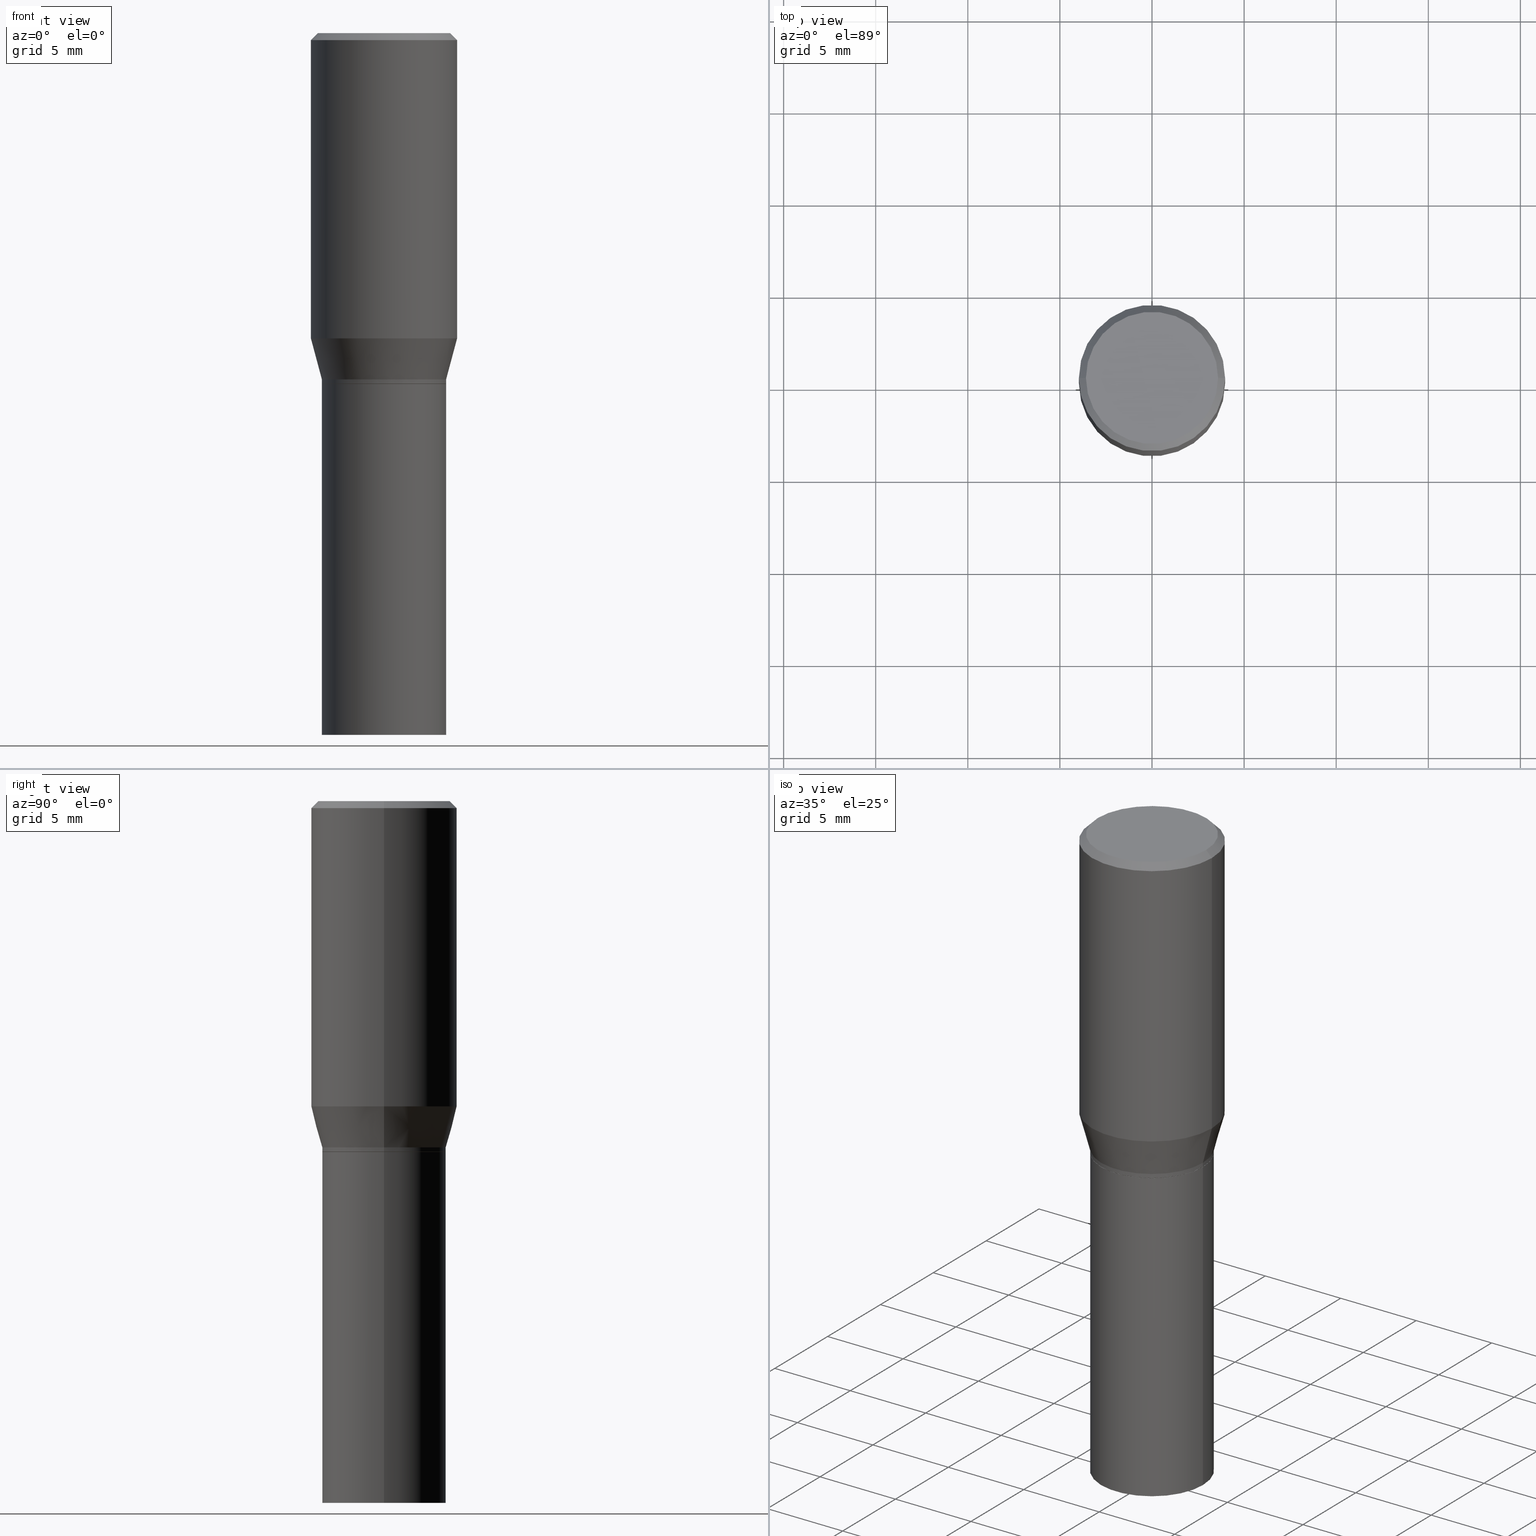
[diagram: canonical four-view strip — front | top / right | iso, engineering-drawing reading convention]
A machine part, canonical four-view strip (front | top / right | iso — engineering-drawing reading convention). The complete STEP part file that produces these views, byte-faithful:
ISO-10303-21;
HEADER;
FILE_DESCRIPTION (( 'STEP AP203' ),
    '1' );
FILE_NAME ('39333.STEP',
    '2024-03-12T18:59:09',
    ( '' ),
    ( '' ),
    'SwSTEP 2.0',
    'SolidWorks 2023',
    '' );
FILE_SCHEMA (( 'CONFIG_CONTROL_DESIGN' ));
ENDSEC;

DATA;
#1 = DIRECTION ( 'NONE',  ( 1.000000000000000000, -6.982962677686265922E-15, 4.874209154772796007E-29 ) ) ;
#2 = AXIS2_PLACEMENT_3D ( 'NONE', #280, #392, #69 ) ;
#3 = DIRECTION ( 'NONE',  ( -2.438088387897960049E-29, 3.491481338843145188E-15, 1.000000000000000000 ) ) ;
#4 = LINE ( 'NONE', #144, #257 ) ;
#5 =( NAMED_UNIT ( * ) SI_UNIT ( $, .STERADIAN. ) SOLID_ANGLE_UNIT ( ) );
#6 = FACE_OUTER_BOUND ( 'NONE', #228, .T. ) ;
#7 = PERSON_AND_ORGANIZATION ( #335, #107 ) ;
#8 = LINE ( 'NONE', #187, #110 ) ;
#9 = CONICAL_SURFACE ( 'NONE', #119, 0.1323000000000000009, 0.7853981633974653764 ) ;
#10 = MECHANICAL_CONTEXT ( 'NONE', #27, 'mechanical' ) ;
#11 = CC_DESIGN_PERSON_AND_ORGANIZATION_ASSIGNMENT ( #50, #80, ( #263 ) ) ;
#12 = CARTESIAN_POINT ( 'NONE',  ( -0.1323000000000000009, -1.675913737547635335E-15, -0.7500000000000001110 ) ) ;
#13 = EDGE_CURVE ( 'NONE', #385, #230, #47, .T. ) ;
#14 = CALENDAR_DATE ( 2024, 12, 3 ) ;
#15 = DATE_TIME_ROLE ( 'creation_date' ) ;
#16 = DIRECTION ( 'NONE',  ( 1.000000000000000000, -6.982962677686265133E-15, 0.000000000000000000 ) ) ;
#17 = EDGE_CURVE ( 'NONE', #260, #193, #23, .T. ) ;
#18 = CC_DESIGN_APPROVAL ( #441, ( #371 ) ) ;
#19 = DATE_AND_TIME ( #14, #362 ) ;
#20 = ORIENTED_EDGE ( 'NONE', *, *, #302, .F. ) ;
#21 = PRODUCT_DEFINITION_SHAPE ( 'NONE', 'NONE',  #154 ) ;
#22 = ORIENTED_EDGE ( 'NONE', *, *, #25, .T. ) ;
#23 = CIRCLE ( 'NONE', #277, 0.1323000000000000009 ) ;
#24 = AXIS2_PLACEMENT_3D ( 'NONE', #143, #388, #175 ) ;
#25 = EDGE_CURVE ( 'NONE', #193, #260, #346, .T. ) ;
#26 = ORIENTED_EDGE ( 'NONE', *, *, #66, .T. ) ;
#27 = APPLICATION_CONTEXT ( 'configuration controlled 3d designs of mechanical parts and assemblies' ) ;
#28 = EDGE_LOOP ( 'NONE', ( #74, #161, #201, #53 ) ) ;
#29 = ORIENTED_EDGE ( 'NONE', *, *, #176, .T. ) ;
#30 = DIRECTION ( 'NONE',  ( -2.445468806185136597E-29, 3.491481338843145583E-15, 1.000000000000000000 ) ) ;
#31 = CARTESIAN_POINT ( 'NONE',  ( 9.273374435967543661E-16, 0.1327999999999973924, -0.7500000000000004441 ) ) ;
#32 = CARTESIAN_POINT ( 'NONE',  ( 0.000000000000000000, 0.000000000000000000, 0.000000000000000000 ) ) ;
#33 = AXIS2_PLACEMENT_3D ( 'NONE', #37, #98, #100 ) ;
#34 = CARTESIAN_POINT ( 'NONE',  ( 0.000000000000000000, 0.000000000000000000, 0.000000000000000000 ) ) ;
#35 = ORIENTED_EDGE ( 'NONE', *, *, #383, .T. ) ;
#36 = CARTESIAN_POINT ( 'NONE',  ( 0.1562500000000000000, -1.091087918388479174E-15, 7.619026212181150377E-30 ) ) ;
#37 = CARTESIAN_POINT ( 'NONE',  ( 3.668203209277705088E-31, -5.237222008264718399E-17, -0.01499999999999999944 ) ) ;
#38 = FACE_OUTER_BOUND ( 'NONE', #188, .T. ) ;
#39 = PLANE ( 'NONE',  #205 ) ;
#40 = CARTESIAN_POINT ( 'NONE',  ( 1.595627822192971094E-29, -2.278133644900773069E-15, -0.6524834085625104141 ) ) ;
#41 = DIRECTION ( 'NONE',  ( -2.445468806185136597E-29, 3.491481338843145583E-15, 1.000000000000000000 ) ) ;
#42 = APPROVAL_DATE_TIME ( #214, #253 ) ;
#43 = CARTESIAN_POINT ( 'NONE',  ( -0.1328000000000000569, 9.436007530894134510E-16, -6.532345799858516735E-30 ) ) ;
#44 = DIRECTION ( 'NONE',  ( -2.445468806185136877E-29, 3.491481338843145188E-15, 1.000000000000000000 ) ) ;
#45 = FACE_OUTER_BOUND ( 'NONE', #306, .T. ) ;
#46 = EDGE_LOOP ( 'NONE', ( #224, #137 ) ) ;
#47 = CIRCLE ( 'NONE', #160, 0.1328000000000000014 ) ;
#48 = CIRCLE ( 'NONE', #300, 0.1562500000000000000 ) ;
#49 = COORDINATED_UNIVERSAL_TIME_OFFSET ( 5, 0, .BEHIND. ) ;
#50 = PERSON_AND_ORGANIZATION ( #335, #107 ) ;
#51 = ADVANCED_FACE ( 'NONE', ( #276 ), #426, .T. ) ;
#52 = CARTESIAN_POINT ( 'NONE',  ( 1.809646916577001463E-29, -2.583696190743928228E-15, -0.7400000000000002132 ) ) ;
#53 = ORIENTED_EDGE ( 'NONE', *, *, #462, .F. ) ;
#54 = PERSON_AND_ORGANIZATION_ROLE ( 'creator' ) ;
#55 = VERTEX_POINT ( 'NONE', #421 ) ;
#56 = CIRCLE ( 'NONE', #264, 0.1328000000000000014 ) ;
#57 = CIRCLE ( 'NONE', #379, 0.1328000000000000569 ) ;
#58 = ORIENTED_EDGE ( 'NONE', *, *, #397, .F. ) ;
#59 = CC_DESIGN_DATE_AND_TIME_ASSIGNMENT ( #404, #85, ( #371 ) ) ;
#60 = ORIENTED_EDGE ( 'NONE', *, *, #464, .T. ) ;
#61 = AXIS2_PLACEMENT_3D ( 'NONE', #243, #73, #1 ) ;
#62 = ORIENTED_EDGE ( 'NONE', *, *, #333, .F. ) ;
#63 = CARTESIAN_POINT ( 'NONE',  ( 1.809646916577001463E-29, -2.583696190743928228E-15, -0.7400000000000002132 ) ) ;
#64 = DIRECTION ( 'NONE',  ( -2.445468806185136877E-29, 3.491481338843145188E-15, 1.000000000000000000 ) ) ;
#65 = DIRECTION ( 'NONE',  ( -2.438088387897960049E-29, 3.491481338843145188E-15, 1.000000000000000000 ) ) ;
#66 = EDGE_CURVE ( 'NONE', #55, #299, #48, .T. ) ;
#67 = DIRECTION ( 'NONE',  ( -2.445468806185136597E-29, 3.491481338843145583E-15, 1.000000000000000000 ) ) ;
#68 = VECTOR ( 'NONE', #174, 39.37007874015748143 ) ;
#69 = DIRECTION ( 'NONE',  ( 1.000000000000000000, -6.982962677686268288E-15, 0.000000000000000000 ) ) ;
#70 = DIRECTION ( 'NONE',  ( 1.000000000000000000, -6.982962677686266711E-15, 4.876176775795935232E-29 ) ) ;
#71 = APPROVAL ( #329, 'UNSPECIFIED' ) ;
#72 = DIRECTION ( 'NONE',  ( 1.000000000000000000, -6.982962677686265133E-15, 0.000000000000000000 ) ) ;
#73 = DIRECTION ( 'NONE',  ( -2.445468806185136597E-29, 3.491481338843145583E-15, 1.000000000000000000 ) ) ;
#74 = ORIENTED_EDGE ( 'NONE', *, *, #410, .T. ) ;
#75 = CALENDAR_DATE ( 2024, 12, 3 ) ;
#76 = LOCAL_TIME ( 14, 59, 9.000000000000000000, #247 ) ;
#77 = PLANE ( 'NONE',  #140 ) ;
#78 = APPLICATION_PROTOCOL_DEFINITION ( 'international standard', 'config_control_design', 1994, #291 ) ;
#79 = CARTESIAN_POINT ( 'NONE',  ( -0.1562500000000000000, 1.038715698305832094E-15, -0.01499999999999999944 ) ) ;
#80 = PERSON_AND_ORGANIZATION_ROLE ( 'design_owner' ) ;
#81 = ADVANCED_FACE ( 'NONE', ( #132 ), #373, .T. ) ;
#82 = CARTESIAN_POINT ( 'NONE',  ( 0.1323000000000000009, -3.542456966390252304E-15, -0.7500000000000001110 ) ) ;
#83 = CYLINDRICAL_SURFACE ( 'NONE', #194, 0.1328000000000000569 ) ;
#84 = CONICAL_SURFACE ( 'NONE', #128, 0.1328000000000000569, 0.2617993877991501850 ) ;
#85 = DATE_TIME_ROLE ( 'classification_date' ) ;
#86 = LOCAL_TIME ( 14, 59, 9.000000000000000000, #192 ) ;
#87 = CIRCLE ( 'NONE', #347, 0.1328000000000000014 ) ;
#88 = EDGE_CURVE ( 'NONE', #232, #234, #286, .T. ) ;
#89 = ADVANCED_FACE ( 'NONE', ( #141 ), #39, .F. ) ;
#90 = EDGE_LOOP ( 'NONE', ( #20, #304, #124, #162 ) ) ;
#91 = VERTEX_POINT ( 'NONE', #203 ) ;
#92 = ADVANCED_FACE ( 'NONE', ( #136 ), #77, .F. ) ;
#93 = VERTEX_POINT ( 'NONE', #396 ) ;
#94 = EDGE_LOOP ( 'NONE', ( #121, #244, #413, #164 ) ) ;
#95 = ADVANCED_FACE ( 'NONE', ( #351 ), #321, .T. ) ;
#96 = CIRCLE ( 'NONE', #2, 0.1328000000000000014 ) ;
#97 = FACE_OUTER_BOUND ( 'NONE', #342, .T. ) ;
#98 = DIRECTION ( 'NONE',  ( -2.445468806185136597E-29, 3.491481338843145583E-15, 1.000000000000000000 ) ) ;
#99 = CARTESIAN_POINT ( 'NONE',  ( 3.668203209277705088E-31, -5.237222008264718399E-17, -0.01499999999999999944 ) ) ;
#100 = DIRECTION ( 'NONE',  ( 1.000000000000000000, -6.982962677686266711E-15, 0.000000000000000000 ) ) ;
#101 = DIRECTION ( 'NONE',  ( -0.2588190451025214611, 5.211531920934550253E-15, 0.9659258262890679791 ) ) ;
#102 = DIRECTION ( 'NONE',  ( -1.000000000000000000, 6.982962677686266711E-15, 0.000000000000000000 ) ) ;
#103 = EDGE_CURVE ( 'NONE', #126, #339, #96, .T. ) ;
#104 = CARTESIAN_POINT ( 'NONE',  ( 0.1328000000000000569, -3.511033634340664450E-15, -0.7400000000000002132 ) ) ;
#105 = CYLINDRICAL_SURFACE ( 'NONE', #411, 0.1562500000000000000 ) ;
#106 = APPROVAL_ROLE ( '' ) ;
#107 = ORGANIZATION ( 'UNSPECIFIED', 'UNSPECIFIED', '' ) ;
#108 = DIRECTION ( 'NONE',  ( 0.7071067811865483499, -7.319954787623257623E-15, -0.7071067811865466846 ) ) ;
#109 = DIMENSIONAL_EXPONENTS ( 1.000000000000000000, 0.000000000000000000, 0.000000000000000000, 0.000000000000000000, 0.000000000000000000, 0.000000000000000000, 0.000000000000000000 ) ;
#110 = VECTOR ( 'NONE', #111, 39.37007874015748143 ) ;
#111 = DIRECTION ( 'NONE',  ( -2.445468806185136877E-29, 3.491481338843145188E-15, 1.000000000000000000 ) ) ;
#112 = DATE_AND_TIME ( #405, #446 ) ;
#113 = DIRECTION ( 'NONE',  ( -0.7071067811865483499, 2.468850131082265738E-15, -0.7071067811865466846 ) ) ;
#114 = EDGE_CURVE ( 'NONE', #193, #93, #171, .T. ) ;
#115 = PERSON_AND_ORGANIZATION ( #335, #107 ) ;
#116 = CARTESIAN_POINT ( 'NONE',  ( 9.863434782231852123E-16, 0.1412500000000000144, -5.149855398773074051E-16 ) ) ;
#117 = SHAPE_DEFINITION_REPRESENTATION ( #21, #375 ) ;
#118 = CARTESIAN_POINT ( 'NONE',  ( 0.000000000000000000, 0.000000000000000000, 0.000000000000000000 ) ) ;
#119 = AXIS2_PLACEMENT_3D ( 'NONE', #406, #284, #438 ) ;
#120 = ORIENTED_EDGE ( 'NONE', *, *, #428, .F. ) ;
#121 = ORIENTED_EDGE ( 'NONE', *, *, #142, .F. ) ;
#122 = ORIENTED_EDGE ( 'NONE', *, *, #66, .F. ) ;
#123 = EDGE_CURVE ( 'NONE', #381, #91, #225, .T. ) ;
#124 = ORIENTED_EDGE ( 'NONE', *, *, #195, .T. ) ;
#125 = ADVANCED_FACE ( 'NONE', ( #430 ), #105, .T. ) ;
#126 = VERTEX_POINT ( 'NONE', #181 ) ;
#127 = ORIENTED_EDGE ( 'NONE', *, *, #180, .T. ) ;
#128 = AXIS2_PLACEMENT_3D ( 'NONE', #153, #367, #289 ) ;
#129 = DIRECTION ( 'NONE',  ( -2.445468806185136597E-29, 3.491481338843145583E-15, 1.000000000000000000 ) ) ;
#130 = DIRECTION ( 'NONE',  ( -2.445468806185136597E-29, 3.491481338843145583E-15, 1.000000000000000000 ) ) ;
#131 = DIRECTION ( 'NONE',  ( 1.000000000000000000, -6.982962677686268288E-15, 0.000000000000000000 ) ) ;
#132 = FACE_OUTER_BOUND ( 'NONE', #94, .T. ) ;
#133 = ORIENTED_EDGE ( 'NONE', *, *, #103, .T. ) ;
#134 = DIRECTION ( 'NONE',  ( -2.445468806185136877E-29, 3.491481338843145188E-15, 1.000000000000000000 ) ) ;
#135 = CC_DESIGN_PERSON_AND_ORGANIZATION_ASSIGNMENT ( #146, #254, ( #371 ) ) ;
#136 = FACE_OUTER_BOUND ( 'NONE', #377, .T. ) ;
#137 = ORIENTED_EDGE ( 'NONE', *, *, #17, .F. ) ;
#138 = CARTESIAN_POINT ( 'NONE',  ( -0.1323000000000000009, -1.678562964721746930E-15, -0.7500000000000001110 ) ) ;
#139 = AXIS2_PLACEMENT_3D ( 'NONE', #239, #458, #355 ) ;
#140 = AXIS2_PLACEMENT_3D ( 'NONE', #31, #177, #361 ) ;
#141 = FACE_OUTER_BOUND ( 'NONE', #46, .T. ) ;
#142 = EDGE_CURVE ( 'NONE', #91, #234, #4, .T. ) ;
#143 = CARTESIAN_POINT ( 'NONE',  ( 1.066899386337773103E-45, -1.523249566054587316E-31, -4.362760153142606033E-17 ) ) ;
#144 = CARTESIAN_POINT ( 'NONE',  ( 0.1562500000000000000, -1.124325032234449083E-15, -0.01499999999999999944 ) ) ;
#145 = LINE ( 'NONE', #148, #364 ) ;
#146 = PERSON_AND_ORGANIZATION ( #335, #107 ) ;
#147 = DATE_AND_TIME ( #439, #391 ) ;
#148 = CARTESIAN_POINT ( 'NONE',  ( 0.1328000000000000569, -9.273374435967366167E-16, 6.475562758257005110E-30 ) ) ;
#149 =( GEOMETRIC_REPRESENTATION_CONTEXT ( 3 ) GLOBAL_UNCERTAINTY_ASSIGNED_CONTEXT ( ( #327 ) ) GLOBAL_UNIT_ASSIGNED_CONTEXT ( ( #365, #184, #5 ) ) REPRESENTATION_CONTEXT ( 'NONE', 'WORKASPACE' ) );
#150 = APPROVAL_ROLE ( '' ) ;
#151 = FACE_OUTER_BOUND ( 'NONE', #90, .T. ) ;
#152 = ORIENTED_EDGE ( 'NONE', *, *, #256, .F. ) ;
#153 = CARTESIAN_POINT ( 'NONE',  ( 1.809646916577001463E-29, -2.583696190743928228E-15, -0.7400000000000002132 ) ) ;
#154 = PRODUCT_DEFINITION ( 'UNKNOWN', '', #262, #356 ) ;
#155 = APPROVAL_ROLE ( '' ) ;
#156 = MANIFOLD_SOLID_BREP ( 'Body-Move/Copy2[1]', #240 ) ;
#157 = CIRCLE ( 'NONE', #24, 0.1412500000000000144 ) ;
#158 = ORIENTED_EDGE ( 'NONE', *, *, #123, .T. ) ;
#159 = APPROVAL_STATUS ( 'not_yet_approved' ) ;
#160 = AXIS2_PLACEMENT_3D ( 'NONE', #359, #273, #207 ) ;
#161 = ORIENTED_EDGE ( 'NONE', *, *, #333, .T. ) ;
#162 = ORIENTED_EDGE ( 'NONE', *, *, #290, .F. ) ;
#163 = ORIENTED_EDGE ( 'NONE', *, *, #142, .T. ) ;
#164 = ORIENTED_EDGE ( 'NONE', *, *, #88, .T. ) ;
#165 = DIRECTION ( 'NONE',  ( 1.000000000000000000, -6.982962677686266711E-15, 4.876176775795935232E-29 ) ) ;
#166 = CARTESIAN_POINT ( 'NONE',  ( 0.000000000000000000, 0.000000000000000000, 0.000000000000000000 ) ) ;
#167 = VECTOR ( 'NONE', #113, 39.37007874015748143 ) ;
#168 = EDGE_LOOP ( 'NONE', ( #269, #29, #198, #315 ) ) ;
#169 = CONICAL_SURFACE ( 'NONE', #311, 0.1562500000000000000, 0.7853981633974495002 ) ;
#170 = DIRECTION ( 'NONE',  ( -2.445468806185136877E-29, 3.491481338843145188E-15, 1.000000000000000000 ) ) ;
#171 = LINE ( 'NONE', #461, #68 ) ;
#172 = ADVANCED_FACE ( 'NONE', ( #401 ), #216, .T. ) ;
#173 = DIRECTION ( 'NONE',  ( -0.7071067811865595631, 7.493145998870398336E-15, 0.7071067811865354713 ) ) ;
#174 = DIRECTION ( 'NONE',  ( 0.7071067811865595631, -2.468850131082382884E-15, 0.7071067811865354713 ) ) ;
#175 = DIRECTION ( 'NONE',  ( 1.000000000000000000, -6.982962677686265922E-15, 4.874209154772796007E-29 ) ) ;
#176 = EDGE_CURVE ( 'NONE', #385, #339, #8, .T. ) ;
#177 = DIRECTION ( 'NONE',  ( 2.438088387897960049E-29, -3.491481338843145188E-15, -1.000000000000000000 ) ) ;
#178 = DIRECTION ( 'NONE',  ( -2.445468806185136597E-29, 3.491481338843145583E-15, 1.000000000000000000 ) ) ;
#179 = VECTOR ( 'NONE', #134, 39.37007874015748143 ) ;
#180 = EDGE_CURVE ( 'NONE', #339, #126, #87, .T. ) ;
#181 = CARTESIAN_POINT ( 'NONE',  ( 0.1328000000000000014, -3.545948447729095705E-15, -0.7500000000000001110 ) ) ;
#182 = PERSON_AND_ORGANIZATION ( #335, #107 ) ;
#183 = DIRECTION ( 'NONE',  ( -2.445468806185136877E-29, 3.491481338843145188E-15, 1.000000000000000000 ) ) ;
#184 =( NAMED_UNIT ( * ) PLANE_ANGLE_UNIT ( ) SI_UNIT ( $, .RADIAN. ) );
#185 = FACE_OUTER_BOUND ( 'NONE', #266, .T. ) ;
#186 = AXIS2_PLACEMENT_3D ( 'NONE', #456, #129, #349 ) ;
#187 = CARTESIAN_POINT ( 'NONE',  ( -0.1328000000000000014, 9.436007530894130566E-16, -6.532345799858513932E-30 ) ) ;
#188 = EDGE_LOOP ( 'NONE', ( #332, #422, #191, #417 ) ) ;
#189 = ADVANCED_FACE ( 'NONE', ( #6 ), #84, .T. ) ;
#190 = DIRECTION ( 'NONE',  ( -2.445468806185136597E-29, 3.491481338843145583E-15, 1.000000000000000000 ) ) ;
#191 = ORIENTED_EDGE ( 'NONE', *, *, #454, .T. ) ;
#192 = COORDINATED_UNIVERSAL_TIME_OFFSET ( 5, 0, .BEHIND. ) ;
#193 = VERTEX_POINT ( 'NONE', #82 ) ;
#194 = AXIS2_PLACEMENT_3D ( 'NONE', #118, #366, #374 ) ;
#195 = EDGE_CURVE ( 'NONE', #93, #303, #145, .T. ) ;
#196 = VERTEX_POINT ( 'NONE', #370 ) ;
#197 = ORIENTED_EDGE ( 'NONE', *, *, #397, .T. ) ;
#198 = ORIENTED_EDGE ( 'NONE', *, *, #103, .F. ) ;
#199 = ORIENTED_EDGE ( 'NONE', *, *, #195, .F. ) ;
#200 = CYLINDRICAL_SURFACE ( 'NONE', #444, 0.1328000000000000014 ) ;
#201 = ORIENTED_EDGE ( 'NONE', *, *, #464, .F. ) ;
#202 = CARTESIAN_POINT ( 'NONE',  ( 1.832878870235759926E-29, -2.616865263462937979E-15, -0.7495000000000000551 ) ) ;
#203 = CARTESIAN_POINT ( 'NONE',  ( 0.1412500000000000144, -1.046685187209839144E-15, -4.362760153141894826E-17 ) ) ;
#204 = ORIENTED_EDGE ( 'NONE', *, *, #290, .T. ) ;
#205 = AXIS2_PLACEMENT_3D ( 'NONE', #465, #65, #317 ) ;
#206 = DIRECTION ( 'NONE',  ( 1.000000000000000000, -6.982962677686265922E-15, 4.876176775795935793E-29 ) ) ;
#207 = DIRECTION ( 'NONE',  ( 1.000000000000000000, -6.982962677686263555E-15, 0.000000000000000000 ) ) ;
#208 = ADVANCED_FACE ( 'NONE', ( #185 ), #403, .F. ) ;
#209 = DIRECTION ( 'NONE',  ( -2.445468806185136597E-29, 3.491481338843145583E-15, 1.000000000000000000 ) ) ;
#210 = CARTESIAN_POINT ( 'NONE',  ( 0.000000000000000000, 0.000000000000000000, 0.000000000000000000 ) ) ;
#211 = CARTESIAN_POINT ( 'NONE',  ( -0.1562500000000000000, 1.110223024625156540E-15, -7.685836078523291160E-30 ) ) ;
#212 = DIRECTION ( 'NONE',  ( 1.000000000000000000, -6.982962677686266711E-15, 4.876176775795936353E-29 ) ) ;
#213 = APPROVAL_PERSON_ORGANIZATION ( #412, #441, #155 ) ;
#214 = DATE_AND_TIME ( #75, #76 ) ;
#215 = AXIS2_PLACEMENT_3D ( 'NONE', #40, #209, #72 ) ;
#216 = CYLINDRICAL_SURFACE ( 'NONE', #330, 0.1562500000000000000 ) ;
#217 = PERSON_AND_ORGANIZATION ( #335, #107 ) ;
#218 = CARTESIAN_POINT ( 'NONE',  ( -0.1562500000000000000, -5.502990786655347834E-17, -0.01499999999999999944 ) ) ;
#219 = DIRECTION ( 'NONE',  ( 1.000000000000000000, -6.982962677686263555E-15, 0.000000000000000000 ) ) ;
#220 = CC_DESIGN_PERSON_AND_ORGANIZATION_ASSIGNMENT ( #451, #292, ( #262 ) ) ;
#221 = VECTOR ( 'NONE', #173, 39.37007874015748143 ) ;
#222 = DIRECTION ( 'NONE',  ( -1.000000000000000000, 6.982962677686265922E-15, -4.876176775795935793E-29 ) ) ;
#223 = ADVANCED_FACE ( 'NONE', ( #45 ), #9, .T. ) ;
#224 = ORIENTED_EDGE ( 'NONE', *, *, #25, .F. ) ;
#225 = CIRCLE ( 'NONE', #61, 0.1412500000000000144 ) ;
#226 = AXIS2_PLACEMENT_3D ( 'NONE', #99, #67, #354 ) ;
#227 = CC_DESIGN_APPROVAL ( #71, ( #154 ) ) ;
#228 = EDGE_LOOP ( 'NONE', ( #363, #389, #384, #301 ) ) ;
#229 = ORIENTED_EDGE ( 'NONE', *, *, #17, .T. ) ;
#230 = VERTEX_POINT ( 'NONE', #331 ) ;
#231 = EDGE_CURVE ( 'NONE', #381, #232, #440, .T. ) ;
#232 = VERTEX_POINT ( 'NONE', #218 ) ;
#233 = CIRCLE ( 'NONE', #435, 0.1328000000000000569 ) ;
#234 = VERTEX_POINT ( 'NONE', #252 ) ;
#235 = PLANE ( 'NONE',  #352 ) ;
#236 = DIRECTION ( 'NONE',  ( 2.445468806185136597E-29, -3.491481338843145583E-15, -1.000000000000000000 ) ) ;
#237 = DIRECTION ( 'NONE',  ( 2.445468806185136597E-29, -3.491481338843145583E-15, -1.000000000000000000 ) ) ;
#238 = LINE ( 'NONE', #211, #179 ) ;
#239 = CARTESIAN_POINT ( 'NONE',  ( 1.834101604638852448E-29, -2.618611004132359088E-15, -0.7500000000000001110 ) ) ;
#240 = CLOSED_SHELL ( 'NONE', ( #95, #395, #344, #92 ) ) ;
#241 = AXIS2_PLACEMENT_3D ( 'NONE', #210, #130, #314 ) ;
#242 = LINE ( 'NONE', #36, #380 ) ;
#243 = CARTESIAN_POINT ( 'NONE',  ( 1.066899386337773103E-45, -1.523249566054587316E-31, -4.362760153142606033E-17 ) ) ;
#244 = ORIENTED_EDGE ( 'NONE', *, *, #123, .F. ) ;
#245 = CARTESIAN_POINT ( 'NONE',  ( -0.1328000000000000014, -2.984315753109125576E-15, -0.7500000000000001110 ) ) ;
#246 = CARTESIAN_POINT ( 'NONE',  ( 0.000000000000000000, 0.000000000000000000, 0.000000000000000000 ) ) ;
#247 = COORDINATED_UNIVERSAL_TIME_OFFSET ( 5, 0, .BEHIND. ) ;
#248 = DIRECTION ( 'NONE',  ( -2.445468806185136597E-29, 3.491481338843145583E-15, 1.000000000000000000 ) ) ;
#249 = AXIS2_PLACEMENT_3D ( 'NONE', #423, #387, #307 ) ;
#250 = DIRECTION ( 'NONE',  ( -2.445468806185136597E-29, 3.491481338843145583E-15, 1.000000000000000000 ) ) ;
#251 = CARTESIAN_POINT ( 'NONE',  ( 0.000000000000000000, 0.000000000000000000, 0.000000000000000000 ) ) ;
#252 = CARTESIAN_POINT ( 'NONE',  ( 0.1562500000000000000, -1.143460138471126253E-15, -0.01499999999999999944 ) ) ;
#253 = APPROVAL ( #400, 'UNSPECIFIED' ) ;
#254 = PERSON_AND_ORGANIZATION_ROLE ( 'classification_officer' ) ;
#255 = DIRECTION ( 'NONE',  ( -2.445468806185136597E-29, 3.491481338843145583E-15, 1.000000000000000000 ) ) ;
#256 = EDGE_CURVE ( 'NONE', #230, #385, #56, .T. ) ;
#257 = VECTOR ( 'NONE', #108, 39.37007874015748143 ) ;
#258 = LINE ( 'NONE', #43, #393 ) ;
#259 = SECURITY_CLASSIFICATION_LEVEL ( 'unclassified' ) ;
#260 = VERTEX_POINT ( 'NONE', #12 ) ;
#261 = ORIENTED_EDGE ( 'NONE', *, *, #320, .T. ) ;
#262 = PRODUCT_DEFINITION_FORMATION_WITH_SPECIFIED_SOURCE ( 'ANY', '', #263, .NOT_KNOWN. ) ;
#263 = PRODUCT ( '39333', '39333', '', ( #10 ) ) ;
#264 = AXIS2_PLACEMENT_3D ( 'NONE', #433, #255, #219 ) ;
#265 = EDGE_LOOP ( 'NONE', ( #62, #26, #337, #459 ) ) ;
#266 = EDGE_LOOP ( 'NONE', ( #158, #197 ) ) ;
#267 = EDGE_LOOP ( 'NONE', ( #348, #229, #434, #452 ) ) ;
#268 = AXIS2_PLACEMENT_3D ( 'NONE', #432, #237, #102 ) ;
#269 = ORIENTED_EDGE ( 'NONE', *, *, #256, .T. ) ;
#270 = CARTESIAN_POINT ( 'NONE',  ( -0.1328000000000000569, -1.640095437654514777E-15, -0.7400000000000002132 ) ) ;
#271 = DIRECTION ( 'NONE',  ( 1.000000000000000000, -6.982962677686265133E-15, 0.000000000000000000 ) ) ;
#272 = CARTESIAN_POINT ( 'NONE',  ( 3.576687321579069994E-29, -5.368277968210015545E-15, -1.500000000000000222 ) ) ;
#273 = DIRECTION ( 'NONE',  ( -2.445468806185136597E-29, 3.491481338843145583E-15, 1.000000000000000000 ) ) ;
#274 = ADVANCED_FACE ( 'NONE', ( #151 ), #83, .T. ) ;
#275 = DIRECTION ( 'NONE',  ( 1.000000000000000000, -6.982962677686268288E-15, 0.000000000000000000 ) ) ;
#276 = FACE_OUTER_BOUND ( 'NONE', #305, .T. ) ;
#277 = AXIS2_PLACEMENT_3D ( 'NONE', #308, #424, #323 ) ;
#278 = CIRCLE ( 'NONE', #215, 0.1562500000000000000 ) ;
#279 = DIRECTION ( 'NONE',  ( 1.000000000000000000, -6.982962677686265133E-15, 0.000000000000000000 ) ) ;
#280 = CARTESIAN_POINT ( 'NONE',  ( 1.834101604638852448E-29, -2.618611004132359088E-15, -0.7500000000000001110 ) ) ;
#281 = FACE_OUTER_BOUND ( 'NONE', #267, .T. ) ;
#282 = CARTESIAN_POINT ( 'NONE',  ( 1.595627822192971094E-29, -2.278133644900773069E-15, -0.6524834085625104141 ) ) ;
#283 = DIRECTION ( 'NONE',  ( 0.000000000000000000, 0.000000000000000000, 1.000000000000000000 ) ) ;
#284 = DIRECTION ( 'NONE',  ( -2.445468806185136597E-29, 3.491481338843145583E-15, 1.000000000000000000 ) ) ;
#285 = DIRECTION ( 'NONE',  ( 1.000000000000000000, 0.000000000000000000, 0.000000000000000000 ) ) ;
#286 = CIRCLE ( 'NONE', #33, 0.1562500000000000000 ) ;
#287 = VECTOR ( 'NONE', #64, 39.37007874015748143 ) ;
#288 = DIRECTION ( 'NONE',  ( 2.438088387897960049E-29, -3.491481338843145188E-15, -1.000000000000000000 ) ) ;
#289 = DIRECTION ( 'NONE',  ( 1.000000000000000000, -6.982962677686265133E-15, 0.000000000000000000 ) ) ;
#290 = EDGE_CURVE ( 'NONE', #297, #303, #233, .T. ) ;
#291 = APPLICATION_CONTEXT ( 'configuration controlled 3d designs of mechanical parts and assemblies' ) ;
#292 = PERSON_AND_ORGANIZATION_ROLE ( 'design_supplier' ) ;
#293 = DIRECTION ( 'NONE',  ( 1.000000000000000000, -6.982962677686266711E-15, 4.876176775795936353E-29 ) ) ;
#294 = CLOSED_SHELL ( 'NONE', ( #51, #223, #453, #172, #189, #442, #125, #81, #208, #89, #414, #274 ) ) ;
#295 = CIRCLE ( 'NONE', #310, 0.1328000000000000569 ) ;
#296 = ORIENTED_EDGE ( 'NONE', *, *, #341, .F. ) ;
#297 = VERTEX_POINT ( 'NONE', #336 ) ;
#298 = CC_DESIGN_PERSON_AND_ORGANIZATION_ASSIGNMENT ( #182, #54, ( #262 ) ) ;
#299 = VERTEX_POINT ( 'NONE', #443 ) ;
#300 = AXIS2_PLACEMENT_3D ( 'NONE', #282, #248, #271 ) ;
#301 = ORIENTED_EDGE ( 'NONE', *, *, #320, .F. ) ;
#302 = EDGE_CURVE ( 'NONE', #196, #297, #258, .T. ) ;
#303 = VERTEX_POINT ( 'NONE', #463 ) ;
#304 = ORIENTED_EDGE ( 'NONE', *, *, #369, .T. ) ;
#305 = EDGE_LOOP ( 'NONE', ( #382, #345, #120, #199 ) ) ;
#306 = EDGE_LOOP ( 'NONE', ( #22, #35, #296, #445 ) ) ;
#307 = DIRECTION ( 'NONE',  ( 1.000000000000000000, -6.982962677686265133E-15, 0.000000000000000000 ) ) ;
#308 = CARTESIAN_POINT ( 'NONE',  ( 1.834101604638852448E-29, -2.618611004132359088E-15, -0.7500000000000001110 ) ) ;
#309 = MANIFOLD_SOLID_BREP ( 'Body-Move/Copy2[2]', #294 ) ;
#310 = AXIS2_PLACEMENT_3D ( 'NONE', #202, #178, #275 ) ;
#311 = AXIS2_PLACEMENT_3D ( 'NONE', #358, #236, #390 ) ;
#312 = ORIENTED_EDGE ( 'NONE', *, *, #13, .F. ) ;
#313 = LINE ( 'NONE', #104, #419 ) ;
#314 = DIRECTION ( 'NONE',  ( 1.000000000000000000, -6.982962677686266711E-15, 4.876176775795935232E-29 ) ) ;
#315 = ORIENTED_EDGE ( 'NONE', *, *, #454, .F. ) ;
#316 = CARTESIAN_POINT ( 'NONE',  ( -0.1328000000000000014, -2.984315753109125576E-15, -1.500000000000000222 ) ) ;
#317 = DIRECTION ( 'NONE',  ( 1.000000000000000000, -6.982962677686265922E-15, 4.876176775795935793E-29 ) ) ;
#318 = ORIENTED_EDGE ( 'NONE', *, *, #447, .F. ) ;
#319 = LINE ( 'NONE', #429, #287 ) ;
#320 = EDGE_CURVE ( 'NONE', #303, #299, #313, .T. ) ;
#321 = CYLINDRICAL_SURFACE ( 'NONE', #386, 0.1328000000000000014 ) ;
#322 = CARTESIAN_POINT ( 'NONE',  ( -0.1412500000000000144, 1.012529588264508555E-15, -4.362760153143304915E-17 ) ) ;
#323 = DIRECTION ( 'NONE',  ( 1.000000000000000000, -6.982962677686267499E-15, 0.000000000000000000 ) ) ;
#324 = LENGTH_MEASURE_WITH_UNIT ( LENGTH_MEASURE( 0.02539999999999999897 ), #437 );
#325 = DIRECTION ( 'NONE',  ( 1.000000000000000000, -6.982962677686268288E-15, 0.000000000000000000 ) ) ;
#326 = COORDINATED_UNIVERSAL_TIME_OFFSET ( 5, 0, .BEHIND. ) ;
#327 = UNCERTAINTY_MEASURE_WITH_UNIT (LENGTH_MEASURE( 1.000000000000000082E-05 ), #365, 'distance_accuracy_value', 'NONE');
#328 = DIRECTION ( 'NONE',  ( -2.445468806185136597E-29, 3.491481338843145583E-15, 1.000000000000000000 ) ) ;
#329 = APPROVAL_STATUS ( 'not_yet_approved' ) ;
#330 = AXIS2_PLACEMENT_3D ( 'NONE', #166, #328, #293 ) ;
#331 = CARTESIAN_POINT ( 'NONE',  ( 0.1328000000000000014, -6.164559451861454793E-15, -1.500000000000000222 ) ) ;
#332 = ORIENTED_EDGE ( 'NONE', *, *, #176, .F. ) ;
#333 = EDGE_CURVE ( 'NONE', #55, #232, #238, .T. ) ;
#334 = APPROVAL_DATE_TIME ( #112, #71 ) ;
#335 = PERSON ( 'UNSPECIFIED', 'UNSPECIFIED', 'UNSPECIFIED', ('UNSPECIFIED'), ('UNSPECIFIED'), ('UNSPECIFIED') ) ;
#336 = CARTESIAN_POINT ( 'NONE',  ( -0.1328000000000000569, -1.404003028965065357E-15, -0.7400000000000002132 ) ) ;
#337 = ORIENTED_EDGE ( 'NONE', *, *, #462, .T. ) ;
#338 = CIRCLE ( 'NONE', #249, 0.1328000000000000569 ) ;
#339 = VERTEX_POINT ( 'NONE', #245 ) ;
#340 = CC_DESIGN_DATE_AND_TIME_ASSIGNMENT ( #147, #15, ( #154 ) ) ;
#341 = EDGE_CURVE ( 'NONE', #93, #196, #57, .T. ) ;
#342 = EDGE_LOOP ( 'NONE', ( #58, #163, #60, #450 ) ) ;
#343 = CC_DESIGN_APPROVAL ( #253, ( #262 ) ) ;
#344 = ADVANCED_FACE ( 'NONE', ( #38 ), #200, .T. ) ;
#345 = ORIENTED_EDGE ( 'NONE', *, *, #302, .T. ) ;
#346 = CIRCLE ( 'NONE', #139, 0.1323000000000000009 ) ;
#347 = AXIS2_PLACEMENT_3D ( 'NONE', #409, #250, #325 ) ;
#348 = ORIENTED_EDGE ( 'NONE', *, *, #383, .F. ) ;
#349 = DIRECTION ( 'NONE',  ( 1.000000000000000000, -6.982962677686267499E-15, 0.000000000000000000 ) ) ;
#350 = CARTESIAN_POINT ( 'NONE',  ( 1.832878870235759926E-29, -2.616865263462937979E-15, -0.7495000000000000551 ) ) ;
#351 = FACE_OUTER_BOUND ( 'NONE', #168, .T. ) ;
#352 = AXIS2_PLACEMENT_3D ( 'NONE', #272, #3, #206 ) ;
#353 = AXIS2_PLACEMENT_3D ( 'NONE', #63, #30, #279 ) ;
#354 = DIRECTION ( 'NONE',  ( 1.000000000000000000, -6.982962677686266711E-15, 0.000000000000000000 ) ) ;
#355 = DIRECTION ( 'NONE',  ( 1.000000000000000000, -6.982962677686267499E-15, 0.000000000000000000 ) ) ;
#356 = DESIGN_CONTEXT ( 'detailed design', #291, 'design' ) ;
#357 = PRODUCT_RELATED_PRODUCT_CATEGORY ( 'detail', '', ( #263 ) ) ;
#358 = CARTESIAN_POINT ( 'NONE',  ( 3.668203209277705088E-31, -5.237222008264718399E-17, -0.01499999999999999944 ) ) ;
#359 = CARTESIAN_POINT ( 'NONE',  ( 3.668203209277704895E-29, -5.237222008264718177E-15, -1.500000000000000222 ) ) ;
#360 = FACE_OUTER_BOUND ( 'NONE', #416, .T. ) ;
#361 = DIRECTION ( 'NONE',  ( -1.000000000000000000, 6.982962677686265922E-15, -4.876176775795935793E-29 ) ) ;
#362 = LOCAL_TIME ( 14, 59, 9.000000000000000000, #49 ) ;
#363 = ORIENTED_EDGE ( 'NONE', *, *, #428, .T. ) ;
#364 = VECTOR ( 'NONE', #44, 39.37007874015748143 ) ;
#365 =( CONVERSION_BASED_UNIT ( 'INCH', #324 ) LENGTH_UNIT ( ) NAMED_UNIT ( #109 ) );
#366 = DIRECTION ( 'NONE',  ( -2.445468806185136597E-29, 3.491481338843145583E-15, 1.000000000000000000 ) ) ;
#367 = DIRECTION ( 'NONE',  ( -2.445468806185136597E-29, 3.491481338843145583E-15, 1.000000000000000000 ) ) ;
#368 = PERSON_AND_ORGANIZATION_ROLE ( 'creator' ) ;
#369 = EDGE_CURVE ( 'NONE', #196, #93, #295, .T. ) ;
#370 = CARTESIAN_POINT ( 'NONE',  ( -0.1328000000000000569, -1.673264510373524331E-15, -0.7495000000000000551 ) ) ;
#371 = SECURITY_CLASSIFICATION ( '', '', #259 ) ;
#372 = COORDINATED_UNIVERSAL_TIME_OFFSET ( 5, 0, .BEHIND. ) ;
#373 = CONICAL_SURFACE ( 'NONE', #268, 0.1562500000000000000, 0.7853981633974495002 ) ;
#374 = DIRECTION ( 'NONE',  ( 1.000000000000000000, -6.982962677686266711E-15, 4.876176775795935232E-29 ) ) ;
#375 = ADVANCED_BREP_SHAPE_REPRESENTATION ( '39333', ( #156, #309, #407 ), #149 ) ;
#376 = APPROVAL_DATE_TIME ( #19, #441 ) ;
#377 = EDGE_LOOP ( 'NONE', ( #133, #127 ) ) ;
#378 = APPROVAL_PERSON_ORGANIZATION ( #115, #253, #106 ) ;
#379 = AXIS2_PLACEMENT_3D ( 'NONE', #350, #460, #131 ) ;
#380 = VECTOR ( 'NONE', #170, 39.37007874015748143 ) ;
#381 = VERTEX_POINT ( 'NONE', #322 ) ;
#382 = ORIENTED_EDGE ( 'NONE', *, *, #341, .T. ) ;
#383 = EDGE_CURVE ( 'NONE', #260, #196, #398, .T. ) ;
#384 = ORIENTED_EDGE ( 'NONE', *, *, #410, .F. ) ;
#385 = VERTEX_POINT ( 'NONE', #316 ) ;
#386 = AXIS2_PLACEMENT_3D ( 'NONE', #34, #41, #70 ) ;
#387 = DIRECTION ( 'NONE',  ( -2.445468806185136597E-29, 3.491481338843145583E-15, 1.000000000000000000 ) ) ;
#388 = DIRECTION ( 'NONE',  ( -2.445468806185136597E-29, 3.491481338843145583E-15, 1.000000000000000000 ) ) ;
#389 = ORIENTED_EDGE ( 'NONE', *, *, #447, .T. ) ;
#390 = DIRECTION ( 'NONE',  ( -1.000000000000000000, 6.982962677686266711E-15, 0.000000000000000000 ) ) ;
#391 = LOCAL_TIME ( 14, 59, 9.000000000000000000, #372 ) ;
#392 = DIRECTION ( 'NONE',  ( -2.445468806185136597E-29, 3.491481338843145583E-15, 1.000000000000000000 ) ) ;
#393 = VECTOR ( 'NONE', #183, 39.37007874015748143 ) ;
#394 = CC_DESIGN_PERSON_AND_ORGANIZATION_ASSIGNMENT ( #7, #368, ( #154 ) ) ;
#395 = ADVANCED_FACE ( 'NONE', ( #360 ), #235, .F. ) ;
#396 = CARTESIAN_POINT ( 'NONE',  ( 0.1328000000000000569, -3.544202707059674202E-15, -0.7495000000000000551 ) ) ;
#397 = EDGE_CURVE ( 'NONE', #91, #381, #157, .T. ) ;
#398 = LINE ( 'NONE', #138, #221 ) ;
#399 = DIRECTION ( 'NONE',  ( -2.445468806185136597E-29, 3.491481338843145583E-15, 1.000000000000000000 ) ) ;
#400 = APPROVAL_STATUS ( 'not_yet_approved' ) ;
#401 = FACE_OUTER_BOUND ( 'NONE', #28, .T. ) ;
#402 = APPLICATION_PROTOCOL_DEFINITION ( 'international standard', 'config_control_design', 1994, #27 ) ;
#403 = PLANE ( 'NONE',  #427 ) ;
#404 = DATE_AND_TIME ( #408, #86 ) ;
#405 = CALENDAR_DATE ( 2024, 12, 3 ) ;
#406 = CARTESIAN_POINT ( 'NONE',  ( 1.834101604638852448E-29, -2.618611004132359088E-15, -0.7500000000000001110 ) ) ;
#407 = AXIS2_PLACEMENT_3D ( 'NONE', #251, #283, #285 ) ;
#408 = CALENDAR_DATE ( 2024, 12, 3 ) ;
#409 = CARTESIAN_POINT ( 'NONE',  ( 1.834101604638852448E-29, -2.618611004132359088E-15, -0.7500000000000001110 ) ) ;
#410 = EDGE_CURVE ( 'NONE', #299, #55, #278, .T. ) ;
#411 = AXIS2_PLACEMENT_3D ( 'NONE', #246, #399, #212 ) ;
#412 = PERSON_AND_ORGANIZATION ( #335, #107 ) ;
#413 = ORIENTED_EDGE ( 'NONE', *, *, #231, .T. ) ;
#414 = ADVANCED_FACE ( 'NONE', ( #281 ), #457, .T. ) ;
#415 = CONICAL_SURFACE ( 'NONE', #353, 0.1328000000000000569, 0.2617993877991501850 ) ;
#416 = EDGE_LOOP ( 'NONE', ( #152, #312 ) ) ;
#417 = ORIENTED_EDGE ( 'NONE', *, *, #180, .F. ) ;
#418 = CC_DESIGN_SECURITY_CLASSIFICATION ( #371, ( #262 ) ) ;
#419 = VECTOR ( 'NONE', #466, 39.37007874015748143 ) ;
#420 = DIRECTION ( 'NONE',  ( -2.445468806185136597E-29, 3.491481338843145583E-15, 1.000000000000000000 ) ) ;
#421 = CARTESIAN_POINT ( 'NONE',  ( -0.1562500000000000000, -1.167910620275616332E-15, -0.6524834085625104141 ) ) ;
#422 = ORIENTED_EDGE ( 'NONE', *, *, #13, .T. ) ;
#423 = CARTESIAN_POINT ( 'NONE',  ( 1.809646916577001463E-29, -2.583696190743928228E-15, -0.7400000000000002132 ) ) ;
#424 = DIRECTION ( 'NONE',  ( -2.445468806185136597E-29, 3.491481338843145583E-15, 1.000000000000000000 ) ) ;
#425 = LINE ( 'NONE', #270, #449 ) ;
#426 = CYLINDRICAL_SURFACE ( 'NONE', #241, 0.1328000000000000569 ) ;
#427 = AXIS2_PLACEMENT_3D ( 'NONE', #116, #288, #222 ) ;
#428 = EDGE_CURVE ( 'NONE', #303, #297, #338, .T. ) ;
#429 = CARTESIAN_POINT ( 'NONE',  ( 0.1328000000000000014, -9.273374435967362223E-16, 6.475562758257002307E-30 ) ) ;
#430 = FACE_OUTER_BOUND ( 'NONE', #265, .T. ) ;
#431 = FACE_OUTER_BOUND ( 'NONE', #455, .T. ) ;
#432 = CARTESIAN_POINT ( 'NONE',  ( 3.668203209277705088E-31, -5.237222008264718399E-17, -0.01499999999999999944 ) ) ;
#433 = CARTESIAN_POINT ( 'NONE',  ( 3.668203209277704895E-29, -5.237222008264718177E-15, -1.500000000000000222 ) ) ;
#434 = ORIENTED_EDGE ( 'NONE', *, *, #114, .T. ) ;
#435 = AXIS2_PLACEMENT_3D ( 'NONE', #52, #190, #16 ) ;
#436 = CIRCLE ( 'NONE', #226, 0.1562500000000000000 ) ;
#437 =( LENGTH_UNIT ( ) NAMED_UNIT ( * ) SI_UNIT ( $, .METRE. ) );
#438 = DIRECTION ( 'NONE',  ( 1.000000000000000000, -6.982962677686267499E-15, 0.000000000000000000 ) ) ;
#439 = CALENDAR_DATE ( 2024, 12, 3 ) ;
#440 = LINE ( 'NONE', #79, #167 ) ;
#441 = APPROVAL ( #159, 'UNSPECIFIED' ) ;
#442 = ADVANCED_FACE ( 'NONE', ( #431 ), #415, .T. ) ;
#443 = CARTESIAN_POINT ( 'NONE',  ( 0.1562500000000000000, -3.369221563289251454E-15, -0.6524834085625104141 ) ) ;
#444 = AXIS2_PLACEMENT_3D ( 'NONE', #32, #420, #165 ) ;
#445 = ORIENTED_EDGE ( 'NONE', *, *, #114, .F. ) ;
#446 = LOCAL_TIME ( 14, 59, 9.000000000000000000, #326 ) ;
#447 = EDGE_CURVE ( 'NONE', #297, #55, #425, .T. ) ;
#448 = APPROVAL_PERSON_ORGANIZATION ( #217, #71, #150 ) ;
#449 = VECTOR ( 'NONE', #101, 39.37007874015748143 ) ;
#450 = ORIENTED_EDGE ( 'NONE', *, *, #231, .F. ) ;
#451 = PERSON_AND_ORGANIZATION ( #335, #107 ) ;
#452 = ORIENTED_EDGE ( 'NONE', *, *, #369, .F. ) ;
#453 = ADVANCED_FACE ( 'NONE', ( #97 ), #169, .T. ) ;
#454 = EDGE_CURVE ( 'NONE', #230, #126, #319, .T. ) ;
#455 = EDGE_LOOP ( 'NONE', ( #318, #204, #261, #122 ) ) ;
#456 = CARTESIAN_POINT ( 'NONE',  ( 1.834101604638852448E-29, -2.618611004132359088E-15, -0.7500000000000001110 ) ) ;
#457 = CONICAL_SURFACE ( 'NONE', #186, 0.1323000000000000009, 0.7853981633974653764 ) ;
#458 = DIRECTION ( 'NONE',  ( -2.445468806185136597E-29, 3.491481338843145583E-15, 1.000000000000000000 ) ) ;
#459 = ORIENTED_EDGE ( 'NONE', *, *, #88, .F. ) ;
#460 = DIRECTION ( 'NONE',  ( -2.445468806185136597E-29, 3.491481338843145583E-15, 1.000000000000000000 ) ) ;
#461 = CARTESIAN_POINT ( 'NONE',  ( 0.1323000000000000009, -3.542456966390252304E-15, -0.7500000000000001110 ) ) ;
#462 = EDGE_CURVE ( 'NONE', #299, #234, #242, .T. ) ;
#463 = CARTESIAN_POINT ( 'NONE',  ( 0.1328000000000000569, -3.511033634340664450E-15, -0.7400000000000002132 ) ) ;
#464 = EDGE_CURVE ( 'NONE', #234, #232, #436, .T. ) ;
#465 = CARTESIAN_POINT ( 'NONE',  ( 1.834101604638852448E-29, -2.618611004132359088E-15, -0.7500000000000001110 ) ) ;
#466 = DIRECTION ( 'NONE',  ( 0.2588190451025214611, 1.565188264969620982E-15, 0.9659258262890679791 ) ) ;
ENDSEC;
END-ISO-10303-21;
